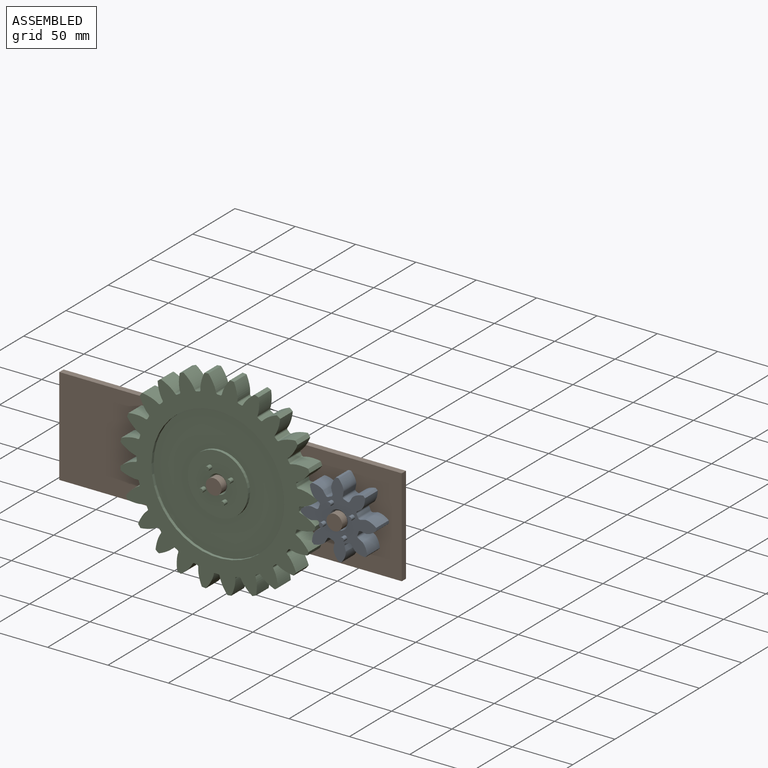
[diagram: assembled view]
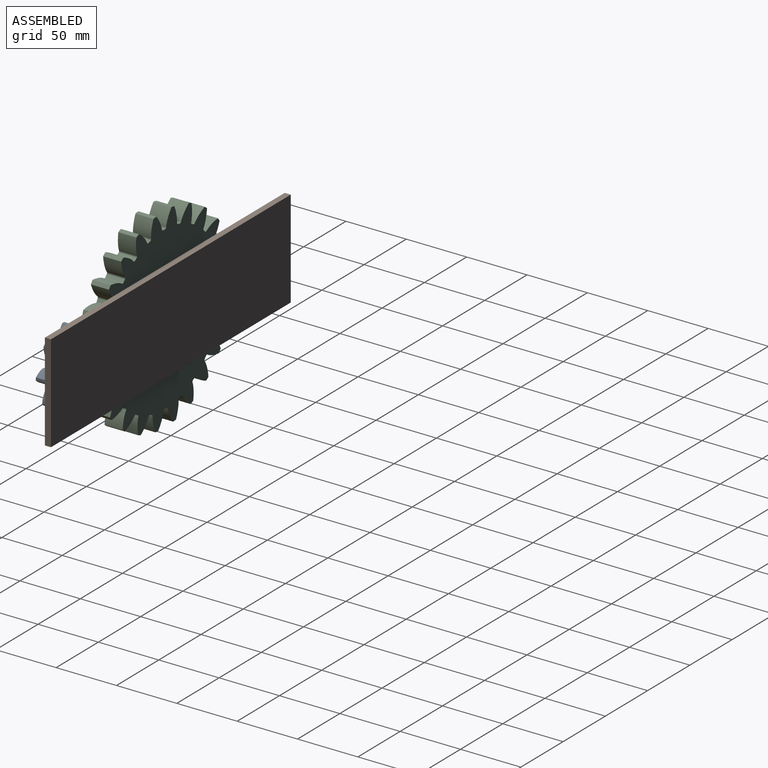
[diagram: assembled view, second angle]
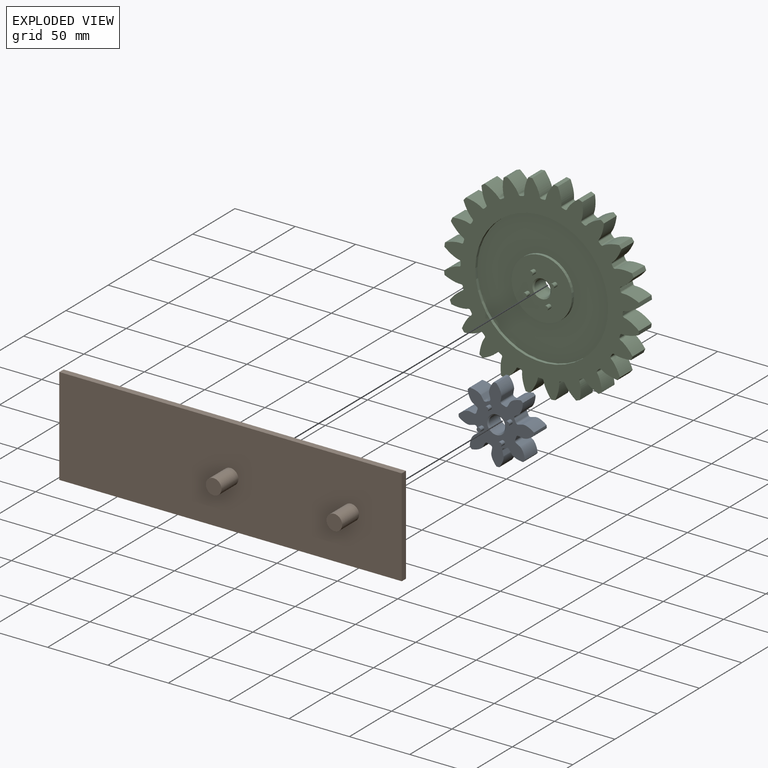
[diagram: exploded view]
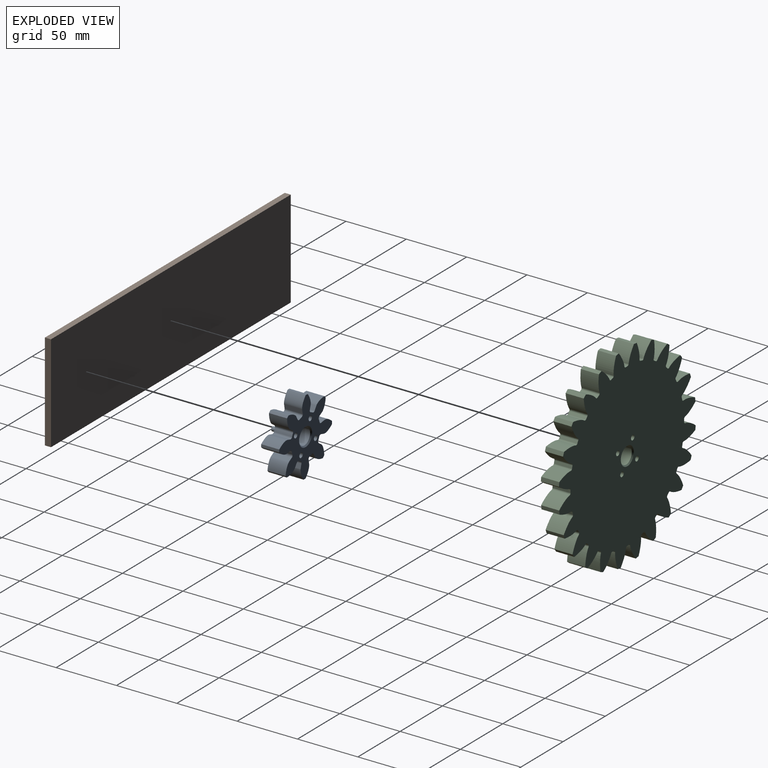
[diagram: exploded view, second angle]
ASSEMBLY  parts=3 mates=2
PART A: 69 faces, bbox 58.8x19x58.8 mm
  f0: cylinder r=31.25mm len=15mm, axis (0,1,0), area 33.9mm2, adj f7,f10,f31,f48
  f1: cylinder r=31.25mm len=15mm, axis (0,1,0), area 33.9mm2, adj f7,f10,f43,f46
  f2: cylinder r=31.25mm len=15mm, axis (0,1,0), area 33.9mm2, adj f7,f10,f11,f38
  f3: cylinder r=31.25mm len=15mm, axis (0,1,0), area 33.9mm2, adj f7,f10,f33,f36
  f4: cylinder r=31.25mm len=15mm, axis (0,1,0), area 33.9mm2, adj f7,f10,f16,f28
  f5: cylinder r=31.25mm len=15mm, axis (0,1,0), area 33.9mm2, adj f7,f10,f23,f41
  f6: cylinder r=31.25mm len=15mm, axis (0,1,0), area 33.9mm2, adj f7,f10,f18,f21
  f7: plane 58.76x58.76mm, normal (0,-1,0), area 1632.8mm2, adj f0,f1,f2,f3,f4,f5,f6,f9
  f8: cylinder r=6.7mm len=13.4mm, axis (0,1,0), area 547.3mm2, adj f51,f52
  f9: cylinder r=31.25mm len=15mm, axis (0,1,0), area 33.9mm2, adj f7,f10,f13,f26
  f10: plane 58.76x58.76mm, normal (0,1,0), area 1621mm2, adj f0,f1,f2,f3,f4,f5,f6,f9
  f11: extruded ~15x10.73mm, area 211.7mm2, adj f2,f7,f10,f14
  f12: cylinder r=17.19mm len=15mm, axis (0,1,0), area 39.2mm2, adj f7,f10,f14,f15
  f13: extruded ~15x10.73mm, area 211.7mm2, adj f7,f9,f10,f15
  f14: cylinder r=1.71mm len=15mm, axis (0,1,0), area 37.9mm2, adj f7,f10,f11,f12
  f15: cylinder r=1.71mm len=15mm, axis (0,1,0), area 37.9mm2, adj f7,f10,f12,f13
  f16: extruded ~15x10.73mm, area 211.7mm2, adj f4,f7,f10,f19
  f17: cylinder r=17.19mm len=15mm, axis (0,1,0), area 39.2mm2, adj f7,f10,f19,f20
  f18: extruded ~15x10.73mm, area 211.7mm2, adj f6,f7,f10,f20
  f19: cylinder r=1.71mm len=15mm, axis (0,1,0), area 37.9mm2, adj f7,f10,f16,f17
  f20: cylinder r=1.71mm len=15mm, axis (0,1,0), area 37.9mm2, adj f7,f10,f17,f18
  f21: extruded ~15x13.1mm, area 211.7mm2, adj f6,f7,f10,f24
  f22: cylinder r=17.19mm len=15mm, axis (0,1,0), area 39.2mm2, adj f7,f10,f24,f25
  f23: extruded ~15x13.1mm, area 211.7mm2, adj f5,f7,f10,f25
  f24: cylinder r=1.71mm len=15mm, axis (0,1,0), area 37.9mm2, adj f7,f10,f21,f22
  f25: cylinder r=1.71mm len=15mm, axis (0,1,0), area 37.9mm2, adj f7,f10,f22,f23
  f26: extruded ~15x13.1mm, area 211.7mm2, adj f7,f9,f10,f29
  f27: cylinder r=17.19mm len=15mm, axis (0,1,0), area 39.2mm2, adj f7,f10,f29,f30
  f28: extruded ~15x13.1mm, area 211.7mm2, adj f4,f7,f10,f30
  f29: cylinder r=1.71mm len=15mm, axis (0,1,0), area 37.9mm2, adj f7,f10,f26,f27
  f30: cylinder r=1.71mm len=15mm, axis (0,1,0), area 37.9mm2, adj f7,f10,f27,f28
  f31: extruded ~15x10.73mm, area 211.7mm2, adj f0,f7,f10,f34
  f32: cylinder r=17.19mm len=15mm, axis (0,1,0), area 39.2mm2, adj f7,f10,f34,f35
  f33: extruded ~15x10.73mm, area 211.7mm2, adj f3,f7,f10,f35
  f34: cylinder r=1.71mm len=15mm, axis (0,1,0), area 37.9mm2, adj f7,f10,f31,f32
  f35: cylinder r=1.71mm len=15mm, axis (0,1,0), area 37.9mm2, adj f7,f10,f32,f33
  f36: extruded ~15x13.1mm, area 211.7mm2, adj f3,f7,f10,f39
  f37: cylinder r=17.19mm len=15mm, axis (0,1,0), area 39.2mm2, adj f7,f10,f39,f40
  f38: extruded ~15x13.1mm, area 211.7mm2, adj f2,f7,f10,f40
  f39: cylinder r=1.71mm len=15mm, axis (0,1,0), area 37.9mm2, adj f7,f10,f36,f37
  f40: cylinder r=1.71mm len=15mm, axis (0,1,0), area 37.9mm2, adj f7,f10,f37,f38
  f41: extruded ~15x10.73mm, area 211.7mm2, adj f5,f7,f10,f44
  f42: cylinder r=17.19mm len=15mm, axis (0,1,0), area 39.2mm2, adj f7,f10,f44,f45
  f43: extruded ~15x10.73mm, area 211.7mm2, adj f1,f7,f10,f45
  f44: cylinder r=1.71mm len=15mm, axis (0,1,0), area 37.9mm2, adj f7,f10,f41,f42
  f45: cylinder r=1.71mm len=15mm, axis (0,1,0), area 37.9mm2, adj f7,f10,f42,f43
  f46: extruded ~15x13.1mm, area 211.7mm2, adj f1,f7,f10,f49
  f47: cylinder r=17.19mm len=15mm, axis (0,1,0), area 39.2mm2, adj f7,f10,f49,f50
  f48: extruded ~15x13.1mm, area 211.7mm2, adj f0,f7,f10,f50
  f49: cylinder r=1.71mm len=15mm, axis (0,1,0), area 37.9mm2, adj f7,f10,f46,f47
  f50: cylinder r=1.71mm len=15mm, axis (0,1,0), area 37.9mm2, adj f7,f10,f47,f48
  f51: cone r=7.7mm half-angle=45deg, axis (0,1,0), area 64mm2, adj f8,f10
  f52: cone r=6.7mm half-angle=45deg, axis (0,-1,0), area 64mm2, adj f7,f8
  f53: cylinder r=1.75mm len=4mm, axis (0,1,0), area 44mm2, adj f7,f54
  f54: plane 3.5x3.5mm, normal (0,-1,0), area 9.6mm2, adj f53
  f55: cylinder r=1.75mm len=4mm, axis (0,1,0), area 44mm2, adj f7,f56
  f56: plane 3.5x3.5mm, normal (0,-1,0), area 9.6mm2, adj f55
  f57: cylinder r=1.75mm len=4mm, axis (0,1,0), area 44mm2, adj f7,f58
  f58: plane 3.5x3.5mm, normal (0,-1,0), area 9.6mm2, adj f57
  f59: cylinder r=1.75mm len=4mm, axis (0,1,0), area 44mm2, adj f7,f60
  f60: plane 3.5x3.5mm, normal (0,-1,0), area 9.6mm2, adj f59
  f61: cylinder r=2mm len=5mm, axis (0,1,0), area 62.8mm2, adj f10,f62
  f62: plane 4x4mm, normal (0,1,0), area 12.6mm2, adj f61
  f63: cylinder r=2mm len=5mm, axis (0,1,0), area 62.8mm2, adj f10,f64
  f64: plane 4x4mm, normal (0,1,0), area 12.6mm2, adj f63
  f65: cylinder r=2mm len=5mm, axis (0,1,0), area 62.8mm2, adj f10,f66
  f66: plane 4x4mm, normal (0,1,0), area 12.6mm2, adj f65
  f67: cylinder r=2mm len=5mm, axis (0,1,0), area 62.8mm2, adj f10,f68
  f68: plane 4x4mm, normal (0,1,0), area 12.6mm2, adj f67
PART B: 10 faces, bbox 283.7x25x80.8 mm
  f0: plane 283.73x5mm, normal (0,0,-1), area 1418.7mm2, adj f1,f3,f4,f5
  f1: plane 80.79x5mm, normal (1,0,0), area 403.9mm2, adj f0,f2,f4,f5
  f2: plane 283.73x5mm, normal (0,0,1), area 1418.7mm2, adj f1,f3,f4,f5
  f3: plane 80.79x5mm, normal (-1,0,0), area 403.9mm2, adj f0,f2,f4,f5
  f4: plane 283.73x80.79mm, normal (0,-1,0), area 22655.9mm2, adj f0,f1,f2,f3,f6,f8
  f5: plane 283.73x80.79mm, normal (0,1,0), area 22921.3mm2, adj f0,f1,f2,f3
  f6: cylinder r=6.5mm len=20mm, axis (0,1,0), area 816.8mm2, adj f4,f7
  f7: plane 13x13mm, normal (0,-1,0), area 132.7mm2, adj f6
  f8: cylinder r=6.5mm len=20mm, axis (0,1,0), area 816.8mm2, adj f4,f9
  f9: plane 13x13mm, normal (0,-1,0), area 132.7mm2, adj f8
PART C: 169 faces, bbox 161.5x19x161.5 mm
  f0: plane 50x50mm, normal (0,-1,0), area 1738.7mm2, adj f148,f152,f153,f155,f157,f159
  f1: cylinder r=81.25mm len=15mm, axis (0,1,0), area 49.6mm2, adj f24,f27,f123,f145
  f2: cylinder r=81.25mm len=15mm, axis (0,1,0), area 49.6mm2, adj f24,f27,f140,f143
  f3: cylinder r=81.25mm len=15mm, axis (0,1,0), area 49.6mm2, adj f24,f27,f128,f135
  f4: cylinder r=81.25mm len=15mm, axis (0,1,0), area 49.6mm2, adj f24,f27,f130,f138
  f5: cylinder r=81.25mm len=15mm, axis (0,1,0), area 49.6mm2, adj f24,f27,f118,f125
  f6: cylinder r=81.25mm len=15mm, axis (0,1,0), area 49.6mm2, adj f24,f27,f108,f120
  f7: cylinder r=81.25mm len=15mm, axis (0,1,0), area 49.6mm2, adj f24,f27,f103,f115
  f8: cylinder r=81.25mm len=15mm, axis (0,1,0), area 49.6mm2, adj f24,f27,f110,f113
  f9: cylinder r=81.25mm len=15mm, axis (0,1,0), area 49.6mm2, adj f24,f27,f98,f105
  f10: cylinder r=81.25mm len=15mm, axis (0,1,0), area 49.6mm2, adj f24,f27,f93,f100
  f11: cylinder r=81.25mm len=15mm, axis (0,1,0), area 49.6mm2, adj f24,f27,f88,f95
  f12: cylinder r=81.25mm len=15mm, axis (0,1,0), area 49.6mm2, adj f24,f27,f73,f90
  f13: cylinder r=81.25mm len=15mm, axis (0,1,0), area 49.6mm2, adj f24,f27,f28,f85
  f14: cylinder r=81.25mm len=15mm, axis (0,1,0), area 49.6mm2, adj f24,f27,f80,f83
  f15: cylinder r=81.25mm len=15mm, axis (0,1,0), area 49.6mm2, adj f24,f27,f68,f75
  f16: cylinder r=81.25mm len=15mm, axis (0,1,0), area 49.6mm2, adj f24,f27,f70,f78
  f17: cylinder r=81.25mm len=15mm, axis (0,1,0), area 49.6mm2, adj f24,f27,f53,f65
  f18: cylinder r=81.25mm len=15mm, axis (0,1,0), area 49.6mm2, adj f24,f27,f48,f60
  f19: cylinder r=81.25mm len=15mm, axis (0,1,0), area 49.6mm2, adj f24,f27,f55,f58
  f20: cylinder r=81.25mm len=15mm, axis (0,1,0), area 49.6mm2, adj f24,f27,f43,f50
  f21: cylinder r=81.25mm len=15mm, axis (0,1,0), area 49.6mm2, adj f24,f27,f38,f45
  f22: cylinder r=81.25mm len=15mm, axis (0,1,0), area 49.6mm2, adj f24,f27,f33,f40
  f23: cylinder r=81.25mm len=15mm, axis (0,1,0), area 49.6mm2, adj f24,f27,f35,f133
  f24: plane 161.51x161.51mm, normal (0,-1,0), area 7960.8mm2, adj f1,f2,f3,f4,f5,f6,f7,f8
  f25: cylinder r=6.7mm len=13.4mm, axis (0,1,0), area 547.3mm2, adj f151,f152
  f26: cylinder r=81.25mm len=15mm, axis (0,1,0), area 49.6mm2, adj f24,f27,f30,f63
  f27: plane 161.51x161.51mm, normal (0,1,0), area 17227.6mm2, adj f1,f2,f3,f4,f5,f6,f7,f8
  f28: extruded ~15x12.42mm, area 212.4mm2, adj f13,f24,f27,f31
  f29: cylinder r=67.19mm len=15mm, axis (0,1,0), area 32.7mm2, adj f24,f27,f31,f32
  f30: extruded ~15x12.42mm, area 212.4mm2, adj f24,f26,f27,f32
  f31: cylinder r=1.36mm len=15mm, axis (0,1,0), area 29.3mm2, adj f24,f27,f28,f29
  f32: cylinder r=1.36mm len=15mm, axis (0,1,0), area 29.3mm2, adj f24,f27,f29,f30
  f33: extruded ~15x13.68mm, area 212.4mm2, adj f22,f24,f27,f36
  f34: cylinder r=67.19mm len=15mm, axis (0,1,0), area 32.7mm2, adj f24,f27,f36,f37
  f35: extruded ~15x10.31mm, area 212.4mm2, adj f23,f24,f27,f37
  f36: cylinder r=1.36mm len=15mm, axis (0,1,0), area 29.3mm2, adj f24,f27,f33,f34
  f37: cylinder r=1.36mm len=15mm, axis (0,1,0), area 29.3mm2, adj f24,f27,f34,f35
  f38: extruded ~15x12.42mm, area 212.4mm2, adj f21,f24,f27,f41
  f39: cylinder r=67.19mm len=15mm, axis (0,1,0), area 32.7mm2, adj f24,f27,f41,f42
  f40: extruded ~15x12.42mm, area 212.4mm2, adj f22,f24,f27,f42
  f41: cylinder r=1.36mm len=15mm, axis (0,1,0), area 29.3mm2, adj f24,f27,f38,f39
  f42: cylinder r=1.36mm len=15mm, axis (0,1,0), area 29.3mm2, adj f24,f27,f39,f40
  f43: extruded ~15x10.31mm, area 212.4mm2, adj f20,f24,f27,f46
  f44: cylinder r=67.19mm len=15mm, axis (0,1,0), area 32.7mm2, adj f24,f27,f46,f47
  f45: extruded ~15x13.68mm, area 212.4mm2, adj f21,f24,f27,f47
  f46: cylinder r=1.36mm len=15mm, axis (0,1,0), area 29.3mm2, adj f24,f27,f43,f44
  f47: cylinder r=1.36mm len=15mm, axis (0,1,0), area 29.3mm2, adj f24,f27,f44,f45
  f48: extruded ~15x11.84mm, area 212.4mm2, adj f18,f24,f27,f51
  f49: cylinder r=67.19mm len=15mm, axis (0,1,0), area 32.7mm2, adj f24,f27,f51,f52
  f50: extruded ~15x14.01mm, area 212.4mm2, adj f20,f24,f27,f52
  f51: cylinder r=1.36mm len=15mm, axis (0,1,0), area 29.3mm2, adj f24,f27,f48,f49
  f52: cylinder r=1.36mm len=15mm, axis (0,1,0), area 29.3mm2, adj f24,f27,f49,f50
  f53: extruded ~15x14.01mm, area 212.4mm2, adj f17,f24,f27,f56
  f54: cylinder r=67.19mm len=15mm, axis (0,1,0), area 32.7mm2, adj f24,f27,f56,f57
  f55: extruded ~15x11.84mm, area 212.4mm2, adj f19,f24,f27,f57
  f56: cylinder r=1.36mm len=15mm, axis (0,1,0), area 29.3mm2, adj f24,f27,f53,f54
  f57: cylinder r=1.36mm len=15mm, axis (0,1,0), area 29.3mm2, adj f24,f27,f54,f55
  f58: extruded ~15x13.38mm, area 212.4mm2, adj f19,f24,f27,f61
  f59: cylinder r=67.19mm len=15mm, axis (0,1,0), area 32.7mm2, adj f24,f27,f61,f62
  f60: extruded ~15x13.38mm, area 212.4mm2, adj f18,f24,f27,f62
  f61: cylinder r=1.36mm len=15mm, axis (0,1,0), area 29.3mm2, adj f24,f27,f58,f59
  f62: cylinder r=1.36mm len=15mm, axis (0,1,0), area 29.3mm2, adj f24,f27,f59,f60
  f63: extruded ~15x13.68mm, area 212.4mm2, adj f24,f26,f27,f66
  f64: cylinder r=67.19mm len=15mm, axis (0,1,0), area 32.7mm2, adj f24,f27,f66,f67
  f65: extruded ~15x10.31mm, area 212.4mm2, adj f17,f24,f27,f67
  f66: cylinder r=1.36mm len=15mm, axis (0,1,0), area 29.3mm2, adj f24,f27,f63,f64
  f67: cylinder r=1.36mm len=15mm, axis (0,1,0), area 29.3mm2, adj f24,f27,f64,f65
  f68: extruded ~15x13.38mm, area 212.4mm2, adj f15,f24,f27,f71
  f69: cylinder r=67.19mm len=15mm, axis (0,1,0), area 32.7mm2, adj f24,f27,f71,f72
  f70: extruded ~15x13.38mm, area 212.4mm2, adj f16,f24,f27,f72
  f71: cylinder r=1.36mm len=15mm, axis (0,1,0), area 29.3mm2, adj f24,f27,f68,f69
  f72: cylinder r=1.36mm len=15mm, axis (0,1,0), area 29.3mm2, adj f24,f27,f69,f70
  f73: extruded ~15x14.01mm, area 212.4mm2, adj f12,f24,f27,f76
  f74: cylinder r=67.19mm len=15mm, axis (0,1,0), area 32.7mm2, adj f24,f27,f76,f77
  f75: extruded ~15x11.84mm, area 212.4mm2, adj f15,f24,f27,f77
  f76: cylinder r=1.36mm len=15mm, axis (0,1,0), area 29.3mm2, adj f24,f27,f73,f74
  f77: cylinder r=1.36mm len=15mm, axis (0,1,0), area 29.3mm2, adj f24,f27,f74,f75
  f78: extruded ~15x11.84mm, area 212.4mm2, adj f16,f24,f27,f81
  f79: cylinder r=67.19mm len=15mm, axis (0,1,0), area 32.7mm2, adj f24,f27,f81,f82
  f80: extruded ~15x14.01mm, area 212.4mm2, adj f14,f24,f27,f82
  f81: cylinder r=1.36mm len=15mm, axis (0,1,0), area 29.3mm2, adj f24,f27,f78,f79
  f82: cylinder r=1.36mm len=15mm, axis (0,1,0), area 29.3mm2, adj f24,f27,f79,f80
  f83: extruded ~15x10.31mm, area 212.4mm2, adj f14,f24,f27,f86
  f84: cylinder r=67.19mm len=15mm, axis (0,1,0), area 32.7mm2, adj f24,f27,f86,f87
  f85: extruded ~15x13.68mm, area 212.4mm2, adj f13,f24,f27,f87
  f86: cylinder r=1.36mm len=15mm, axis (0,1,0), area 29.3mm2, adj f24,f27,f83,f84
  f87: cylinder r=1.36mm len=15mm, axis (0,1,0), area 29.3mm2, adj f24,f27,f84,f85
  f88: extruded ~15x13.68mm, area 212.4mm2, adj f11,f24,f27,f91
  f89: cylinder r=67.19mm len=15mm, axis (0,1,0), area 32.7mm2, adj f24,f27,f91,f92
  f90: extruded ~15x10.31mm, area 212.4mm2, adj f12,f24,f27,f92
  f91: cylinder r=1.36mm len=15mm, axis (0,1,0), area 29.3mm2, adj f24,f27,f88,f89
  f92: cylinder r=1.36mm len=15mm, axis (0,1,0), area 29.3mm2, adj f24,f27,f89,f90
  f93: extruded ~15x12.42mm, area 212.4mm2, adj f10,f24,f27,f96
  f94: cylinder r=67.19mm len=15mm, axis (0,1,0), area 32.7mm2, adj f24,f27,f96,f97
  f95: extruded ~15x12.42mm, area 212.4mm2, adj f11,f24,f27,f97
  f96: cylinder r=1.36mm len=15mm, axis (0,1,0), area 29.3mm2, adj f24,f27,f93,f94
  f97: cylinder r=1.36mm len=15mm, axis (0,1,0), area 29.3mm2, adj f24,f27,f94,f95
  f98: extruded ~15x10.31mm, area 212.4mm2, adj f9,f24,f27,f101
  f99: cylinder r=67.19mm len=15mm, axis (0,1,0), area 32.7mm2, adj f24,f27,f101,f102
  f100: extruded ~15x13.68mm, area 212.4mm2, adj f10,f24,f27,f102
  f101: cylinder r=1.36mm len=15mm, axis (0,1,0), area 29.3mm2, adj f24,f27,f98,f99
  f102: cylinder r=1.36mm len=15mm, axis (0,1,0), area 29.3mm2, adj f24,f27,f99,f100
  f103: extruded ~15x11.84mm, area 212.4mm2, adj f7,f24,f27,f106
  f104: cylinder r=67.19mm len=15mm, axis (0,1,0), area 32.7mm2, adj f24,f27,f106,f107
  f105: extruded ~15x14.01mm, area 212.4mm2, adj f9,f24,f27,f107
  f106: cylinder r=1.36mm len=15mm, axis (0,1,0), area 29.3mm2, adj f24,f27,f103,f104
  f107: cylinder r=1.36mm len=15mm, axis (0,1,0), area 29.3mm2, adj f24,f27,f104,f105
  f108: extruded ~15x14.01mm, area 212.4mm2, adj f6,f24,f27,f111
  f109: cylinder r=67.19mm len=15mm, axis (0,1,0), area 32.7mm2, adj f24,f27,f111,f112
  f110: extruded ~15x11.84mm, area 212.4mm2, adj f8,f24,f27,f112
  f111: cylinder r=1.36mm len=15mm, axis (0,1,0), area 29.3mm2, adj f24,f27,f108,f109
  f112: cylinder r=1.36mm len=15mm, axis (0,1,0), area 29.3mm2, adj f24,f27,f109,f110
  f113: extruded ~15x13.38mm, area 212.4mm2, adj f8,f24,f27,f116
  f114: cylinder r=67.19mm len=15mm, axis (0,1,0), area 32.7mm2, adj f24,f27,f116,f117
  f115: extruded ~15x13.38mm, area 212.4mm2, adj f7,f24,f27,f117
  f116: cylinder r=1.36mm len=15mm, axis (0,1,0), area 29.3mm2, adj f24,f27,f113,f114
  f117: cylinder r=1.36mm len=15mm, axis (0,1,0), area 29.3mm2, adj f24,f27,f114,f115
  f118: extruded ~15x13.68mm, area 212.4mm2, adj f5,f24,f27,f121
  f119: cylinder r=67.19mm len=15mm, axis (0,1,0), area 32.7mm2, adj f24,f27,f121,f122
  f120: extruded ~15x10.31mm, area 212.4mm2, adj f6,f24,f27,f122
  f121: cylinder r=1.36mm len=15mm, axis (0,1,0), area 29.3mm2, adj f24,f27,f118,f119
  f122: cylinder r=1.36mm len=15mm, axis (0,1,0), area 29.3mm2, adj f24,f27,f119,f120
  f123: extruded ~15x12.42mm, area 212.4mm2, adj f1,f24,f27,f126
  f124: cylinder r=67.19mm len=15mm, axis (0,1,0), area 32.7mm2, adj f24,f27,f126,f127
  f125: extruded ~15x12.42mm, area 212.4mm2, adj f5,f24,f27,f127
  f126: cylinder r=1.36mm len=15mm, axis (0,1,0), area 29.3mm2, adj f24,f27,f123,f124
  f127: cylinder r=1.36mm len=15mm, axis (0,1,0), area 29.3mm2, adj f24,f27,f124,f125
  f128: extruded ~15x13.38mm, area 212.4mm2, adj f3,f24,f27,f131
  f129: cylinder r=67.19mm len=15mm, axis (0,1,0), area 32.7mm2, adj f24,f27,f131,f132
  f130: extruded ~15x13.38mm, area 212.4mm2, adj f4,f24,f27,f132
  f131: cylinder r=1.36mm len=15mm, axis (0,1,0), area 29.3mm2, adj f24,f27,f128,f129
  f132: cylinder r=1.36mm len=15mm, axis (0,1,0), area 29.3mm2, adj f24,f27,f129,f130
  f133: extruded ~15x14.01mm, area 212.4mm2, adj f23,f24,f27,f136
  f134: cylinder r=67.19mm len=15mm, axis (0,1,0), area 32.7mm2, adj f24,f27,f136,f137
  f135: extruded ~15x11.84mm, area 212.4mm2, adj f3,f24,f27,f137
  f136: cylinder r=1.36mm len=15mm, axis (0,1,0), area 29.3mm2, adj f24,f27,f133,f134
  f137: cylinder r=1.36mm len=15mm, axis (0,1,0), area 29.3mm2, adj f24,f27,f134,f135
  f138: extruded ~15x11.84mm, area 212.4mm2, adj f4,f24,f27,f141
  f139: cylinder r=67.19mm len=15mm, axis (0,1,0), area 32.7mm2, adj f24,f27,f141,f142
  f140: extruded ~15x14.01mm, area 212.4mm2, adj f2,f24,f27,f142
  f141: cylinder r=1.36mm len=15mm, axis (0,1,0), area 29.3mm2, adj f24,f27,f138,f139
  f142: cylinder r=1.36mm len=15mm, axis (0,1,0), area 29.3mm2, adj f24,f27,f139,f140
  f143: extruded ~15x10.31mm, area 212.4mm2, adj f2,f24,f27,f146
  f144: cylinder r=67.19mm len=15mm, axis (0,1,0), area 32.7mm2, adj f24,f27,f146,f147
  f145: extruded ~15x13.68mm, area 212.4mm2, adj f1,f24,f27,f147
  f146: cylinder r=1.36mm len=15mm, axis (0,1,0), area 29.3mm2, adj f24,f27,f143,f144
  f147: cylinder r=1.36mm len=15mm, axis (0,1,0), area 29.3mm2, adj f24,f27,f144,f145
  f148: cylinder r=25mm len=50mm, axis (0,-1,0), area 392.7mm2, adj f0,f150
  f149: cylinder r=55mm len=110mm, axis (0,-1,0), area 863.9mm2, adj f24,f150
  f150: plane 110x110mm, normal (0,-1,0), area 7539.8mm2, adj f148,f149
  f151: cone r=7.7mm half-angle=45deg, axis (0,1,0), area 64mm2, adj f25,f27
  f152: cone r=6.7mm half-angle=45deg, axis (0,-1,0), area 64mm2, adj f0,f25
  f153: cylinder r=1.75mm len=4mm, axis (0,1,0), area 44mm2, adj f0,f154
  f154: plane 3.5x3.5mm, normal (0,-1,0), area 9.6mm2, adj f153
  f155: cylinder r=1.75mm len=4mm, axis (0,1,0), area 44mm2, adj f0,f156
  f156: plane 3.5x3.5mm, normal (0,-1,0), area 9.6mm2, adj f155
  f157: cylinder r=1.75mm len=4mm, axis (0,1,0), area 44mm2, adj f0,f158
  f158: plane 3.5x3.5mm, normal (0,-1,0), area 9.6mm2, adj f157
  f159: cylinder r=1.75mm len=4mm, axis (0,1,0), area 44mm2, adj f0,f160
  f160: plane 3.5x3.5mm, normal (0,-1,0), area 9.6mm2, adj f159
  f161: cylinder r=2mm len=5mm, axis (0,1,0), area 62.8mm2, adj f27,f162
  f162: plane 4x4mm, normal (0,1,0), area 12.6mm2, adj f161
  f163: cylinder r=2mm len=5mm, axis (0,1,0), area 62.8mm2, adj f27,f164
  f164: plane 4x4mm, normal (0,1,0), area 12.6mm2, adj f163
  f165: cylinder r=2mm len=5mm, axis (0,1,0), area 62.8mm2, adj f27,f166
  f166: plane 4x4mm, normal (0,1,0), area 12.6mm2, adj f165
  f167: cylinder r=2mm len=5mm, axis (0,1,0), area 62.8mm2, adj f27,f168
  f168: plane 4x4mm, normal (0,1,0), area 12.6mm2, adj f167
PLACE A rot(axis=(0,1,0),65.2deg) t=(58.03,-5,90.77)mm
PLACE B at identity fixed
PLACE C rot(axis=(0,-1,0),29.2deg) t=(0,-5,0)mm
MATE revolute C.f1 <-> B.f6  axis (0,1,0) through (0,-5,0)mm
MATE revolute A.f17 <-> B.f8  axis (0,1,0) through (100,-5,0)mm
